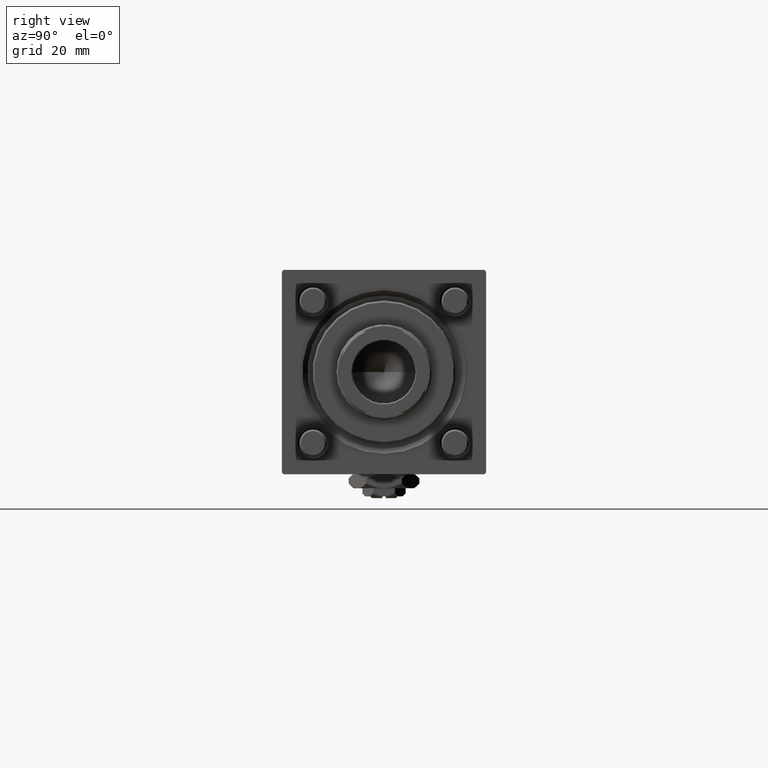
[diagram: clean part render]
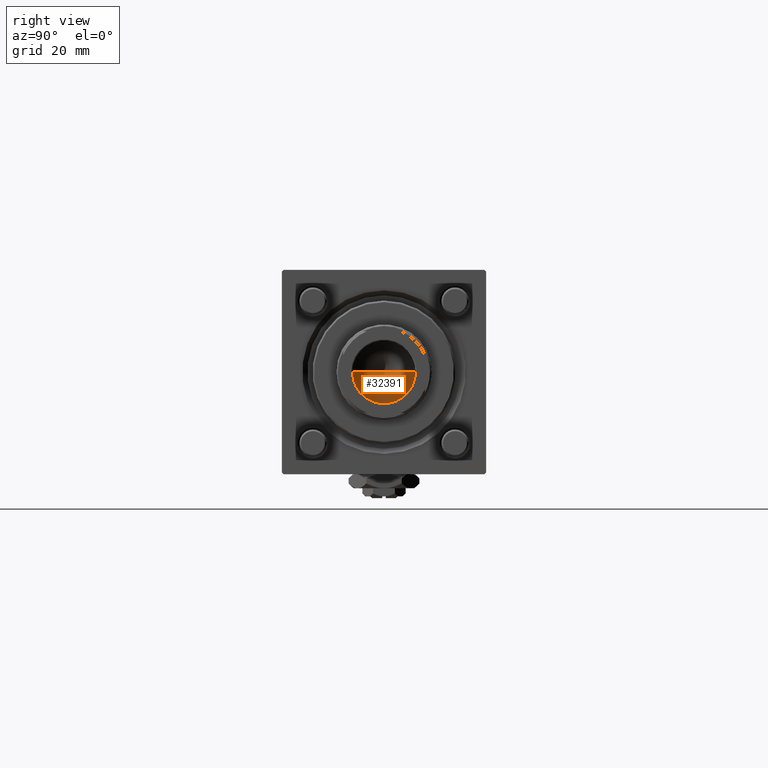
[diagram: same view with one face highlighted and labeled with its STEP entity id]
A machine part, right view. The second image highlights one B-rep face of the part: STEP entity #32391.
In plain terms, the highlighted conical surface has half-angle 59 deg.
Its self-contained STEP definition (entity closure, byte-faithful):
#2028 = CARTESIAN_POINT ( 'NONE',  ( 9.249999999999992895, 0.000000000000000000, 101.0000000000000000 ) ) ;
#3205 = DIRECTION ( 'NONE',  ( 1.000000000000000000, 0.000000000000000000, 0.000000000000000000 ) ) ;
#4402 = DIRECTION ( 'NONE',  ( 1.000000000000000000, 0.000000000000000000, 0.000000000000000000 ) ) ;
#4731 = EDGE_CURVE ( 'NONE', #53768, #30196, #29509, .T. ) ;
#6297 = VERTEX_POINT ( 'NONE', #13945 ) ;
#7065 = FACE_OUTER_BOUND ( 'NONE', #16506, .T. ) ;
#8587 = EDGE_CURVE ( 'NONE', #53768, #6297, #51465, .T. ) ;
#9841 = CONICAL_SURFACE ( 'NONE', #53338, 9.249999999999992895, 1.029744258676653423 ) ;
#10404 = CARTESIAN_POINT ( 'NONE',  ( -9.249999999999992895, 1.132798289211300712E-15, 101.0000000000000000 ) ) ;
#10914 = DIRECTION ( 'NONE',  ( 0.8571673007021117785, 0.000000000000000000, 0.5150380749100550437 ) ) ;
#12131 = CARTESIAN_POINT ( 'NONE',  ( 0.000000000000000000, 0.000000000000000000, 101.0000000000000000 ) ) ;
#13945 = CARTESIAN_POINT ( 'NONE',  ( 9.249999999999992895, 0.000000000000000000, 101.0000000000000000 ) ) ;
#16506 = EDGE_LOOP ( 'NONE', ( #54493, #54547, #22647 ) ) ;
#21009 = DIRECTION ( 'NONE',  ( -0.000000000000000000, -0.000000000000000000, 1.000000000000000000 ) ) ;
#22647 = ORIENTED_EDGE ( 'NONE', *, *, #23695, .T. ) ;
#22766 = VECTOR ( 'NONE', #10914, 1000.000000000000000 ) ;
#23695 = EDGE_CURVE ( 'NONE', #6297, #30196, #36297, .T. ) ;
#29509 = LINE ( 'NONE', #34233, #36772 ) ;
#30196 = VERTEX_POINT ( 'NONE', #10404 ) ;
#32391 = ADVANCED_FACE ( 'NONE', ( #7065 ), #9841, .F. ) ;
#34233 = CARTESIAN_POINT ( 'NONE',  ( -9.249999999999992895, 1.132798289211300712E-15, 101.0000000000000000 ) ) ;
#36297 = CIRCLE ( 'NONE', #42923, 9.249999999999992895 ) ;
#36772 = VECTOR ( 'NONE', #42826, 1000.000000000000000 ) ;
#42826 = DIRECTION ( 'NONE',  ( -0.8571673007021117785, 1.049727191138617956E-16, 0.5150380749100550437 ) ) ;
#42923 = AXIS2_PLACEMENT_3D ( 'NONE', #12131, #58595, #4402 ) ;
#43483 = CARTESIAN_POINT ( 'NONE',  ( 0.000000000000000000, 0.000000000000000000, 101.0000000000000000 ) ) ;
#51465 = LINE ( 'NONE', #2028, #22766 ) ;
#53338 = AXIS2_PLACEMENT_3D ( 'NONE', #43483, #21009, #3205 ) ;
#53768 = VERTEX_POINT ( 'NONE', #56174 ) ;
#54493 = ORIENTED_EDGE ( 'NONE', *, *, #4731, .F. ) ;
#54547 = ORIENTED_EDGE ( 'NONE', *, *, #8587, .T. ) ;
#56174 = CARTESIAN_POINT ( 'NONE',  ( -9.769621978240258809E-15, 0.000000000000000000, 95.44203927399506426 ) ) ;
#58595 = DIRECTION ( 'NONE',  ( -0.000000000000000000, -0.000000000000000000, 1.000000000000000000 ) ) ;